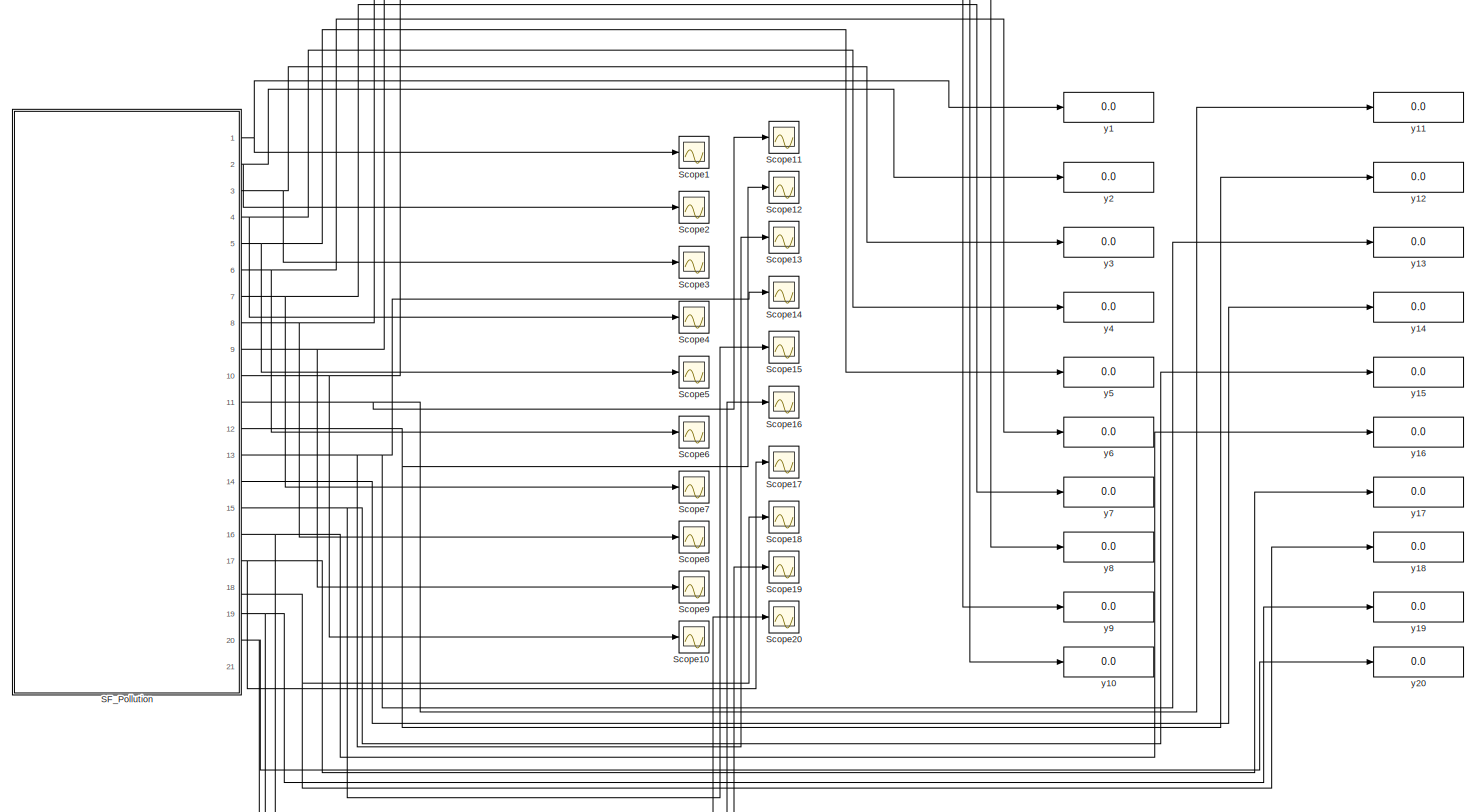
[diagram: root canvas - part 1/1, most of the canvas]
MODEL Pollution
KIND model
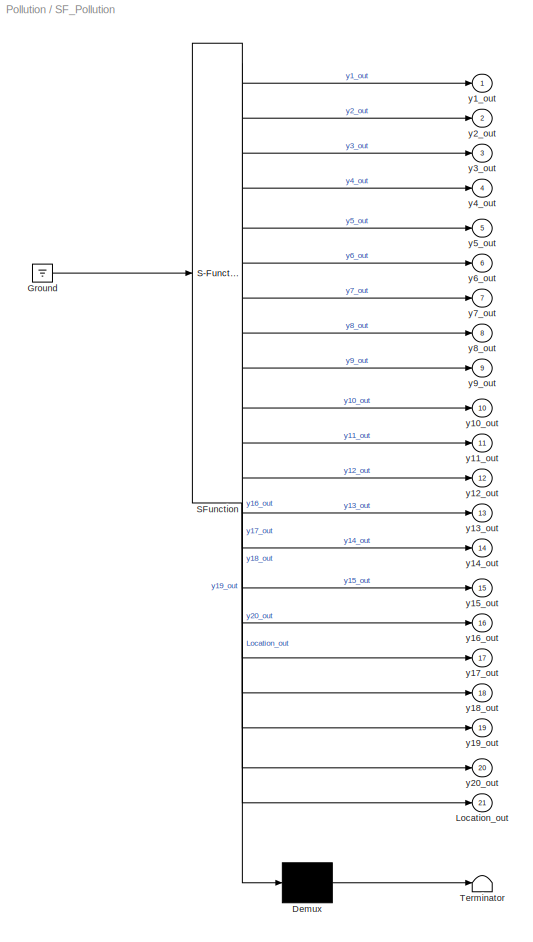
BLOCK [SubSystem] SF_Pollution
  ErrorFcn = Stateflow.Translate.translate
  PermitHierarchicalResolution = ExplicitOnly
  Ports = [0, 21]
  RequestExecContextInheritance = off
  SFBlockType = Chart
  SID = 1
  TreatAsAtomicUnit = on
BLOCK [Demux] SF_Pollution/ Demux 
  Outputs = 1
  Ports = [1, 1]
  SID = 1::87
BLOCK [Ground] SF_Pollution/ Ground 
  SID = 1::89
BLOCK [S-Function] SF_Pollution/ SFunction 
  EnableBusSupport = off
  FunctionName = sf_sfun
  PortCounts = [1 22]
  Ports = [1, 22]
  SFcnIsStateOwnerBlock = off
  SFunctionDeploymentMode = off
  SID = 1::86
  Tag = Stateflow S-Function 3
BLOCK [Terminator] SF_Pollution/ Terminator 
  SID = 1::88
BLOCK [Outport] SF_Pollution/Location_out
  IconDisplay = Port number
  Port = 21
  SID = 1::85
BLOCK [Outport] SF_Pollution/y10_out
  IconDisplay = Port number
  Port = 10
  SID = 1::74
BLOCK [Outport] SF_Pollution/y11_out
  IconDisplay = Port number
  Port = 11
  SID = 1::75
BLOCK [Outport] SF_Pollution/y12_out
  IconDisplay = Port number
  Port = 12
  SID = 1::76
BLOCK [Outport] SF_Pollution/y13_out
  IconDisplay = Port number
  Port = 13
  SID = 1::77
BLOCK [Outport] SF_Pollution/y14_out
  IconDisplay = Port number
  Port = 14
  SID = 1::78
BLOCK [Outport] SF_Pollution/y15_out
  IconDisplay = Port number
  Port = 15
  SID = 1::79
BLOCK [Outport] SF_Pollution/y16_out
  IconDisplay = Port number
  Port = 16
  SID = 1::80
BLOCK [Outport] SF_Pollution/y17_out
  IconDisplay = Port number
  Port = 17
  SID = 1::81
BLOCK [Outport] SF_Pollution/y18_out
  IconDisplay = Port number
  Port = 18
  SID = 1::82
BLOCK [Outport] SF_Pollution/y19_out
  IconDisplay = Port number
  Port = 19
  SID = 1::83
BLOCK [Outport] SF_Pollution/y1_out
  IconDisplay = Port number
  SID = 1::65
BLOCK [Outport] SF_Pollution/y20_out
  IconDisplay = Port number
  Port = 20
  SID = 1::84
BLOCK [Outport] SF_Pollution/y2_out
  IconDisplay = Port number
  Port = 2
  SID = 1::66
BLOCK [Outport] SF_Pollution/y3_out
  IconDisplay = Port number
  Port = 3
  SID = 1::67
BLOCK [Outport] SF_Pollution/y4_out
  IconDisplay = Port number
  Port = 4
  SID = 1::68
BLOCK [Outport] SF_Pollution/y5_out
  IconDisplay = Port number
  Port = 5
  SID = 1::69
BLOCK [Outport] SF_Pollution/y6_out
  IconDisplay = Port number
  Port = 6
  SID = 1::70
BLOCK [Outport] SF_Pollution/y7_out
  IconDisplay = Port number
  Port = 7
  SID = 1::71
BLOCK [Outport] SF_Pollution/y8_out
  IconDisplay = Port number
  Port = 8
  SID = 1::72
BLOCK [Outport] SF_Pollution/y9_out
  IconDisplay = Port number
  Port = 9
  SID = 1::73
BLOCK [Scope] Scope1
  Floating = off
  NumInputPorts = 1
  Ports = [1]
  SID = 27
  ScopeSpecificationString = C++SS(StrPVP('Location','[2266, 427, 2590, 666]'),StrPVP('Open','off'),MxPVP('AxesTitles',54,'struct(''axes1'',''%<SignalLabel>'')'),MxPVP('ScopeGraphics',57,'struct(''FigureColor'',''[0.5 0.5 0.5]'',''AxesColor'',''[0 0 0]'',''AxesTickColor'',''[1 1 1]'',''LineColors'',''[1 1 0;1 0 1;0 1 1;1 0 0;0 1 0;0 0 1]'',''LineStyles'',''-|-|-|-|-|-'',''LineWidths'',''[0.5 0.5 0.5 0.5 0.5 0.5]'',''MarkerSty...<+258ch>
BLOCK [Scope] Scope10
  Floating = off
  NumInputPorts = 1
  Ports = [1]
  SID = 36
  ScopeSpecificationString = C++SS(StrPVP('Location','[188, 365, 512, 604]'),StrPVP('Open','off'),MxPVP('AxesTitles',54,'struct(''axes1'',''%<SignalLabel>'')'),MxPVP('ScopeGraphics',57,'struct(''FigureColor'',''[0.5 0.5 0.5]'',''AxesColor'',''[0 0 0]'',''AxesTickColor'',''[1 1 1]'',''LineColors'',''[1 1 0;1 0 1;0 1 1;1 0 0;0 1 0;0 0 1]'',''LineStyles'',''-|-|-|-|-|-'',''LineWidths'',''[0.5 0.5 0.5 0.5 0.5 0.5]'',''MarkerStyle...<+257ch>  <repeated x11 — deduplicated; at blocks: Scope10, Scope11, Scope12, Scope13, Scope14, Scope15, Scope16, Scope17, Scope18, Scope19, Scope20>
BLOCK [Scope] Scope11
  Floating = off
  NumInputPorts = 1
  Ports = [1]
  SID = 37
BLOCK [Scope] Scope12
  Floating = off
  NumInputPorts = 1
  Ports = [1]
  SID = 38
BLOCK [Scope] Scope13
  Floating = off
  NumInputPorts = 1
  Ports = [1]
  SID = 39
BLOCK [Scope] Scope14
  Floating = off
  NumInputPorts = 1
  Ports = [1]
  SID = 40
BLOCK [Scope] Scope15
  Floating = off
  NumInputPorts = 1
  Ports = [1]
  SID = 41
BLOCK [Scope] Scope16
  Floating = off
  NumInputPorts = 1
  Ports = [1]
  SID = 42
BLOCK [Scope] Scope17
  Floating = off
  NumInputPorts = 1
  Ports = [1]
  SID = 43
BLOCK [Scope] Scope18
  Floating = off
  NumInputPorts = 1
  Ports = [1]
  SID = 44
BLOCK [Scope] Scope19
  Floating = off
  NumInputPorts = 1
  Ports = [1]
  SID = 45
BLOCK [Scope] Scope2
  Floating = off
  NumInputPorts = 1
  Ports = [1]
  SID = 28
  ScopeSpecificationString = C++SS(StrPVP('Location','[188, 365, 512, 604]'),StrPVP('Open','off'),MxPVP('AxesTitles',54,'struct(''axes1'',''%<SignalLabel>'')'),MxPVP('ScopeGraphics',57,'struct(''FigureColor'',''[0.5 0.5 0.5]'',''AxesColor'',''[0 0 0]'',''AxesTickColor'',''[1 1 1]'',''LineColors'',''[1 1 0;1 0 1;0 1 1;1 0 0;0 1 0;0 0 1]'',''LineStyles'',''-|-|-|-|-|-'',''LineWidths'',''[0.5 0.5 0.5 0.5 0.5 0.5]'',''MarkerStyle...<+256ch>  <repeated x8 — deduplicated; at blocks: Scope2, Scope3, Scope4, Scope5, Scope6, Scope7, Scope8, Scope9>
BLOCK [Scope] Scope20
  Floating = off
  NumInputPorts = 1
  Ports = [1]
  SID = 46
BLOCK [Scope] Scope3
  Floating = off
  NumInputPorts = 1
  Ports = [1]
  SID = 29
BLOCK [Scope] Scope4
  Floating = off
  NumInputPorts = 1
  Ports = [1]
  SID = 30
BLOCK [Scope] Scope5
  Floating = off
  NumInputPorts = 1
  Ports = [1]
  SID = 31
BLOCK [Scope] Scope6
  Floating = off
  NumInputPorts = 1
  Ports = [1]
  SID = 32
BLOCK [Scope] Scope7
  Floating = off
  NumInputPorts = 1
  Ports = [1]
  SID = 33
BLOCK [Scope] Scope8
  Floating = off
  NumInputPorts = 1
  Ports = [1]
  SID = 34
BLOCK [Scope] Scope9
  Floating = off
  NumInputPorts = 1
  Ports = [1]
  SID = 35
BLOCK [Display] y1
  Decimation = 1
  Ports = [1]
  SID = 3
BLOCK [Display] y10
  Decimation = 1
  Ports = [1]
  SID = 12
BLOCK [Display] y11
  Decimation = 1
  Ports = [1]
  SID = 13
BLOCK [Display] y12
  Decimation = 1
  Ports = [1]
  SID = 14
BLOCK [Display] y13
  Decimation = 1
  Ports = [1]
  SID = 15
BLOCK [Display] y14
  Decimation = 1
  Ports = [1]
  SID = 16
BLOCK [Display] y15
  Decimation = 1
  Ports = [1]
  SID = 17
BLOCK [Display] y16
  Decimation = 1
  Ports = [1]
  SID = 18
BLOCK [Display] y17
  Decimation = 1
  Ports = [1]
  SID = 19
BLOCK [Display] y18
  Decimation = 1
  Ports = [1]
  SID = 20
BLOCK [Display] y19
  Decimation = 1
  Ports = [1]
  SID = 21
BLOCK [Display] y2
  Decimation = 1
  Ports = [1]
  SID = 4
BLOCK [Display] y20
  Decimation = 1
  Ports = [1]
  SID = 22
BLOCK [Display] y3
  Decimation = 1
  Ports = [1]
  SID = 5
BLOCK [Display] y4
  Decimation = 1
  Ports = [1]
  SID = 6
BLOCK [Display] y5
  Decimation = 1
  Ports = [1]
  SID = 7
BLOCK [Display] y6
  Decimation = 1
  Ports = [1]
  SID = 8
BLOCK [Display] y7
  Decimation = 1
  Ports = [1]
  SID = 9
BLOCK [Display] y8
  Decimation = 1
  Ports = [1]
  SID = 10
BLOCK [Display] y9
  Decimation = 1
  Ports = [1]
  SID = 11
LINE SF_Pollution/ Demux :1 -> SF_Pollution/ Terminator :1
LINE SF_Pollution/ Ground :1 -> SF_Pollution/ SFunction :1
LINE SF_Pollution/ SFunction :1 -> SF_Pollution/ Demux :1
LINE SF_Pollution/ SFunction :10 -> SF_Pollution/y9_out:1
LINE SF_Pollution/ SFunction :11 -> SF_Pollution/y10_out:1
LINE SF_Pollution/ SFunction :12 -> SF_Pollution/y11_out:1
LINE SF_Pollution/ SFunction :13 -> SF_Pollution/y12_out:1
LINE SF_Pollution/ SFunction :14 -> SF_Pollution/y13_out:1
LINE SF_Pollution/ SFunction :15 -> SF_Pollution/y14_out:1
LINE SF_Pollution/ SFunction :16 -> SF_Pollution/y15_out:1
LINE SF_Pollution/ SFunction :17 -> SF_Pollution/y16_out:1
LINE SF_Pollution/ SFunction :18 -> SF_Pollution/y17_out:1
LINE SF_Pollution/ SFunction :19 -> SF_Pollution/y18_out:1
LINE SF_Pollution/ SFunction :2 -> SF_Pollution/y1_out:1
LINE SF_Pollution/ SFunction :20 -> SF_Pollution/y19_out:1
LINE SF_Pollution/ SFunction :21 -> SF_Pollution/y20_out:1
LINE SF_Pollution/ SFunction :22 -> SF_Pollution/Location_out:1
LINE SF_Pollution/ SFunction :3 -> SF_Pollution/y2_out:1
LINE SF_Pollution/ SFunction :4 -> SF_Pollution/y3_out:1
LINE SF_Pollution/ SFunction :5 -> SF_Pollution/y4_out:1
LINE SF_Pollution/ SFunction :6 -> SF_Pollution/y5_out:1
LINE SF_Pollution/ SFunction :7 -> SF_Pollution/y6_out:1
LINE SF_Pollution/ SFunction :8 -> SF_Pollution/y7_out:1
LINE SF_Pollution/ SFunction :9 -> SF_Pollution/y8_out:1
NET SF_Pollution:1 -> Scope1:1, y1:1
NET SF_Pollution:10 -> Scope10:1, y10:1
NET SF_Pollution:11 -> Scope11:1, y11:1
NET SF_Pollution:12 -> Scope12:1, y12:1
NET SF_Pollution:13 -> Scope13:1, Scope14:1, y13:1
LINE SF_Pollution:14 -> y14:1
NET SF_Pollution:15 -> Scope15:1, y15:1
NET SF_Pollution:16 -> Scope16:1, y16:1
NET SF_Pollution:17 -> Scope17:1, y17:1
NET SF_Pollution:18 -> Scope18:1, y18:1
NET SF_Pollution:19 -> Scope19:1, y19:1
NET SF_Pollution:2 -> Scope2:1, y2:1
NET SF_Pollution:20 -> Scope20:1, y20:1
NET SF_Pollution:3 -> Scope3:1, y3:1
NET SF_Pollution:4 -> Scope4:1, y4:1
NET SF_Pollution:5 -> Scope5:1, y5:1
NET SF_Pollution:6 -> Scope6:1, y6:1
NET SF_Pollution:7 -> Scope7:1, y7:1
NET SF_Pollution:8 -> Scope8:1, y8:1
NET SF_Pollution:9 -> Scope9:1, y9:1
note: NET lines group one-source signal fan-out (src -> all destinations, sorted); 1:1 wires keep LINE
CHART SF_Pollution states=1 transitions=1
  STATE_LABEL 'pollution\\ndu:\\ny1_dot=(0-k1)*y1-k10*y11*y1-k14*y1*y6-k23*y1*y4-k24*y19*y1+k2*y2*y4+k3*y5*y2+k9*y11*y2+k11*y13+k12*y10*y2+k22*y19+k25*y20;\\ny2_dot=(0-k2)*y2*y4-k3*y5*y2-k9*y11*y2-k12*y10*y2+k1*y1+k21*y19;\\ny3_dot=(0-k15)*y3+k1*y1+k17*y4+k19*y16+k22*y19;\\ny4_dot=(0-k2)*y2*y4-k16*y4-k17*y4-k23*y1*y4+k15*y3;\\ny5_dot=(0-k3)*y5*y2+2*k4*y7+k6*y7*y6+k7*y9+k13*y14+k20*y17*y6;\\ny6_dot=(0-k6)*y7*y6-k8*y9*y6...<+801ch>'
